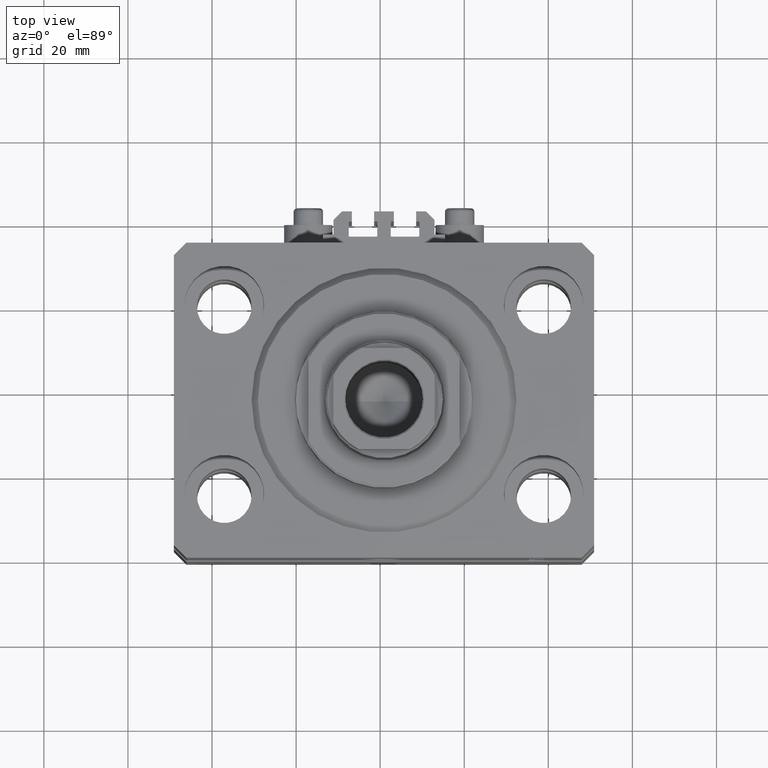
[diagram: clean part render]
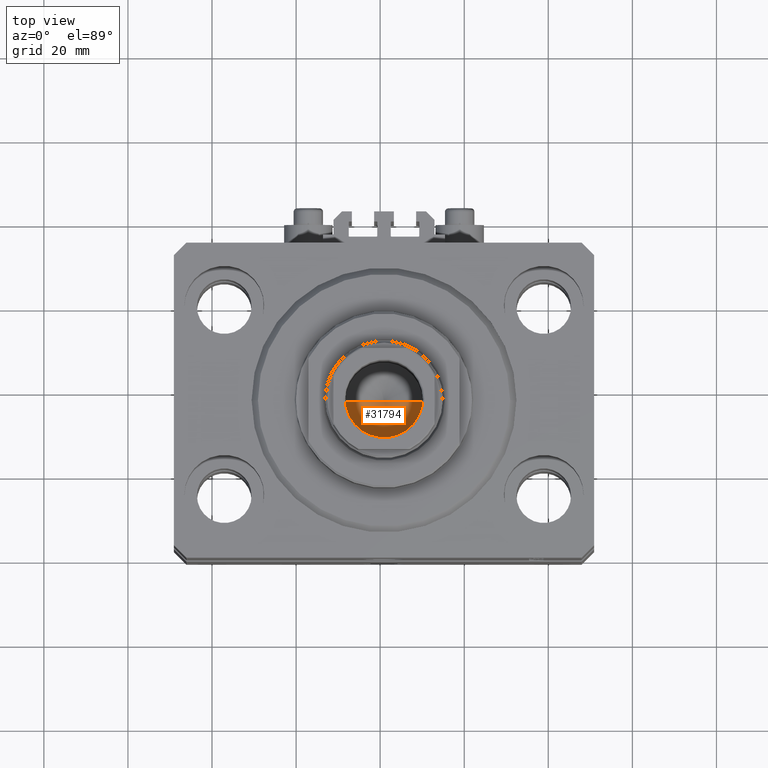
[diagram: same view with one face highlighted and labeled with its STEP entity id]
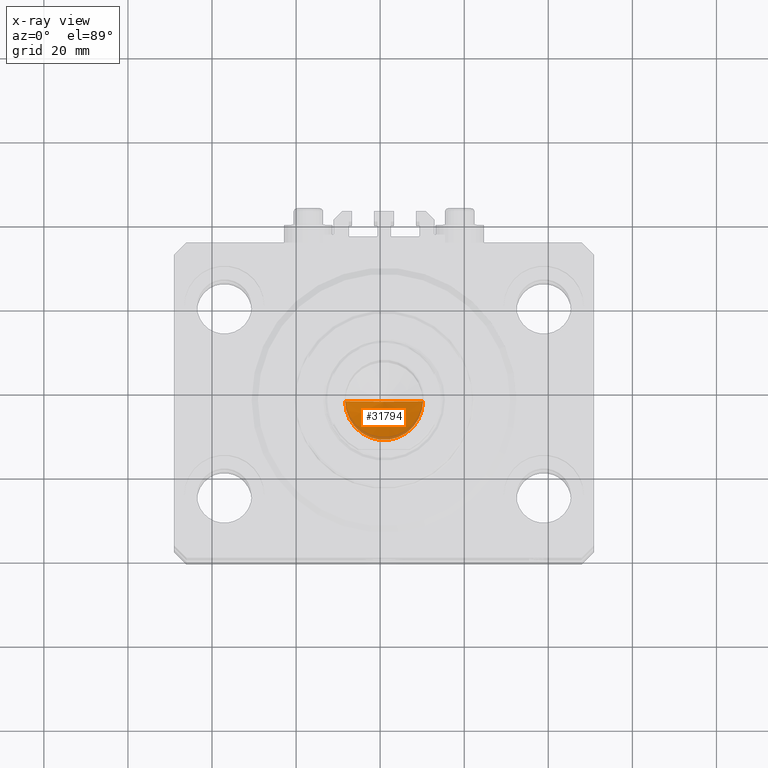
[diagram: x-ray of the same camera — body ghosted, the highlighted face saturated]
A machine part, top view. The second image highlights one B-rep face of the part: STEP entity #31794.
The next image is the same camera in x-ray: the body ghosted, the highlighted face saturated — about 8% of this face is hidden behind the body in this view.
In plain terms, the highlighted conical surface has half-angle 59 deg.
Its self-contained STEP definition (entity closure, byte-faithful):
#365 = CARTESIAN_POINT ( 'NONE',  ( 9.249999999999994671, 0.000000000000000000, 68.09999999999999432 ) ) ;
#514 = CONICAL_SURFACE ( 'NONE', #27432, 9.249999999999994671, 1.029744258676653423 ) ;
#2477 = CARTESIAN_POINT ( 'NONE',  ( -9.249999999999994671, 1.132798289211300909E-15, 68.09999999999999432 ) ) ;
#5426 = CARTESIAN_POINT ( 'NONE',  ( -1.046994375366439223E-14, 0.000000000000000000, 62.54203927399505858 ) ) ;
#6125 = ORIENTED_EDGE ( 'NONE', *, *, #9522, .F. ) ;
#6692 = VERTEX_POINT ( 'NONE', #365 ) ;
#9522 = EDGE_CURVE ( 'NONE', #21978, #6692, #41481, .T. ) ;
#10715 = CARTESIAN_POINT ( 'NONE',  ( -9.249999999999994671, 1.132798289211300909E-15, 68.09999999999999432 ) ) ;
#19491 = AXIS2_PLACEMENT_3D ( 'NONE', #21135, #20895, #42844 ) ;
#20764 = LINE ( 'NONE', #2477, #46437 ) ;
#20895 = DIRECTION ( 'NONE',  ( -0.000000000000000000, -0.000000000000000000, 1.000000000000000000 ) ) ;
#21135 = CARTESIAN_POINT ( 'NONE',  ( 0.000000000000000000, 0.000000000000000000, 68.09999999999999432 ) ) ;
#21167 = EDGE_LOOP ( 'NONE', ( #6125, #44082, #38217 ) ) ;
#21978 = VERTEX_POINT ( 'NONE', #5426 ) ;
#22535 = CIRCLE ( 'NONE', #19491, 9.249999999999994671 ) ;
#23918 = VECTOR ( 'NONE', #30873, 1000.000000000000000 ) ;
#26977 = VERTEX_POINT ( 'NONE', #10715 ) ;
#27432 = AXIS2_PLACEMENT_3D ( 'NONE', #37895, #41021, #38135 ) ;
#27490 = CARTESIAN_POINT ( 'NONE',  ( 9.249999999999994671, 0.000000000000000000, 68.09999999999999432 ) ) ;
#27518 = DIRECTION ( 'NONE',  ( -0.8571673007021117785, 1.049727191138617956E-16, 0.5150380749100550437 ) ) ;
#30873 = DIRECTION ( 'NONE',  ( 0.8571673007021117785, 0.000000000000000000, 0.5150380749100550437 ) ) ;
#31794 = ADVANCED_FACE ( 'NONE', ( #45364 ), #514, .F. ) ;
#37895 = CARTESIAN_POINT ( 'NONE',  ( 0.000000000000000000, 0.000000000000000000, 68.09999999999999432 ) ) ;
#38135 = DIRECTION ( 'NONE',  ( 1.000000000000000000, 0.000000000000000000, 0.000000000000000000 ) ) ;
#38217 = ORIENTED_EDGE ( 'NONE', *, *, #43197, .T. ) ;
#41021 = DIRECTION ( 'NONE',  ( -0.000000000000000000, -0.000000000000000000, 1.000000000000000000 ) ) ;
#41481 = LINE ( 'NONE', #27490, #23918 ) ;
#42842 = EDGE_CURVE ( 'NONE', #21978, #26977, #20764, .T. ) ;
#42844 = DIRECTION ( 'NONE',  ( 1.000000000000000000, 0.000000000000000000, 0.000000000000000000 ) ) ;
#43197 = EDGE_CURVE ( 'NONE', #26977, #6692, #22535, .T. ) ;
#44082 = ORIENTED_EDGE ( 'NONE', *, *, #42842, .T. ) ;
#45364 = FACE_OUTER_BOUND ( 'NONE', #21167, .T. ) ;
#46437 = VECTOR ( 'NONE', #27518, 1000.000000000000000 ) ;